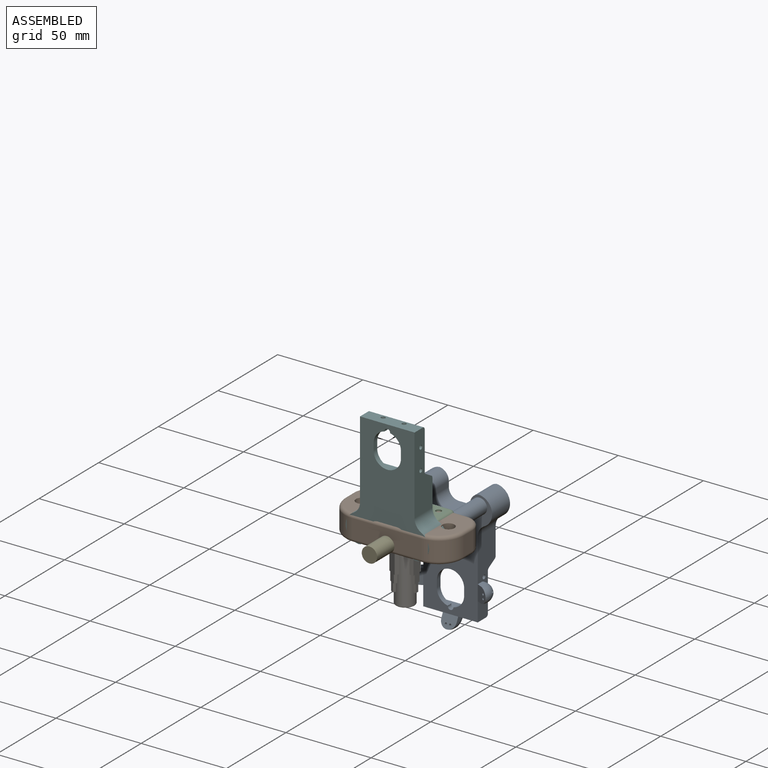
[diagram: assembled view]
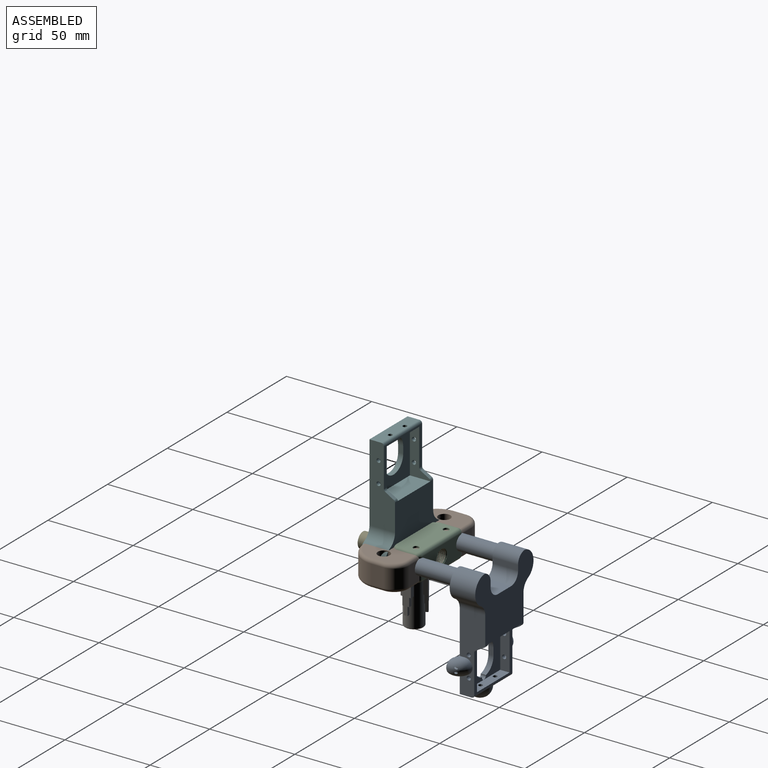
[diagram: assembled view, second angle]
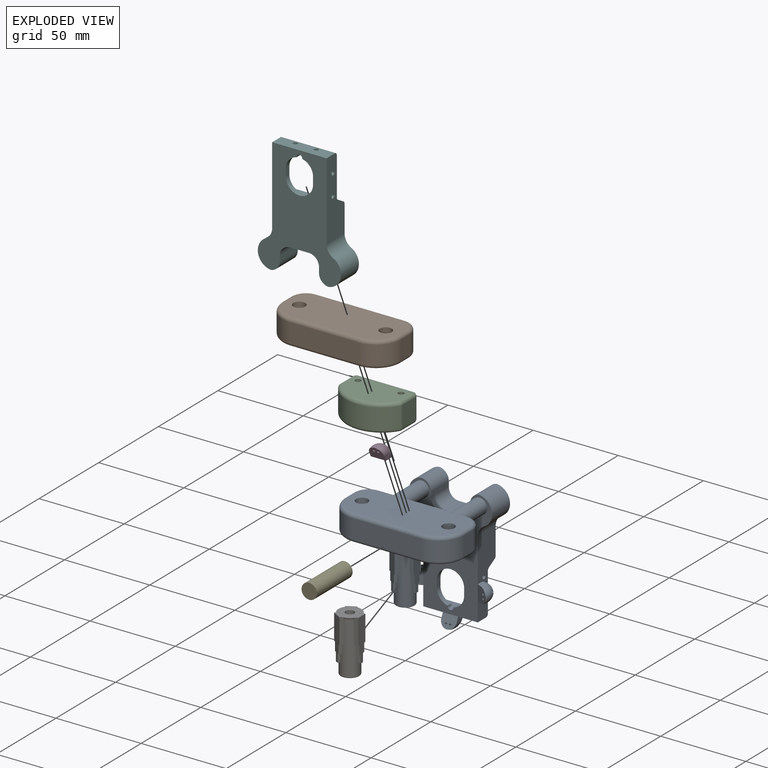
[diagram: exploded view]
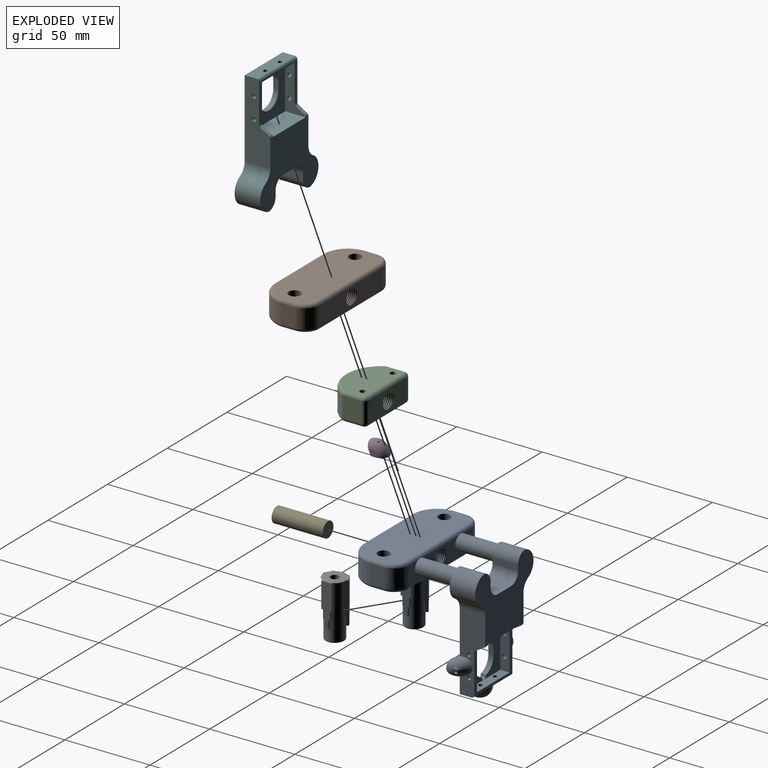
[diagram: exploded view, second angle]
FCSTD DOCUMENT  (FreeCAD 1.1R20260414 (Git shallow))
Label: Integrated-Inexpensive-Treadmill-Centered
License: Creative Commons Attribution-ShareAlike
LicenseURL: http://creativecommons.org/licenses/by-sa/4.0/
objects: Sketcher::SketchObject×24, App::Point×14, PartDesign::Pocket×12, PartDesign::CoordinateSystem×11, PartDesign::Pad×8, App::Link×8, PartDesign::Body×7, App::Part×7, PartDesign::Fillet×4, App::DocumentObjectGroup×3, PartDesign::Hole×2, PartDesign::Revolution×2, PartDesign::Plane×2, App::FeaturePython×1, Spreadsheet::Sheet×1
note: 152 computed .brp shape members not serialized (recipe doc carries the construction recipe); baked Part::Feature solids carry a one-line shape summary decoded from their .brp

FEATURE [Sketcher::SketchObject] Sketch001  label="metricBaseSketch"
  ArcFitTolerance = 0
  AttachmentSupport = -> [XY_Plane001]
  ExternalTypes = [0]
  FullyConstrained = false
  MakeInternals = false
  MapMode = 5
  _ExternalGeoVersion = 0
  sketch-geometry (16):
    g0: LineSegment StartX=-18.625 StartY=2.80977 StartZ=0 EndX=-18.625 EndY=13.5 EndZ=0
    g1: LineSegment StartX=-16.125 StartY=16 StartZ=0 EndX=16.125 EndY=16 EndZ=0
    g2: LineSegment StartX=18.625 StartY=13.5 StartZ=0 EndX=18.625 EndY=2.80977 EndZ=0
    g3: ArcOfCircle CenterX=1e-15 CenterY=12.1195 CenterZ=0 NormalX=0 NormalY=0 NormalZ=1 AngleXU=0 Radius=21.1195 StartAngle=3.66519 EndAngle=5.75959
    g4: ArcOfCircle CenterX=-16.125 CenterY=13.5 CenterZ=0 NormalX=0 NormalY=0 NormalZ=1 AngleXU=0 Radius=2.5 StartAngle=1.5708 EndAngle=3.14159
    g5: ArcOfCircle CenterX=16.125 CenterY=13.5 CenterZ=0 NormalX=0 NormalY=0 NormalZ=1 AngleXU=0 Radius=2.5 StartAngle=0 EndAngle=1.5708
    g6: ArcOfCircle CenterX=16.125 CenterY=2.80977 CenterZ=0 NormalX=0 NormalY=0 NormalZ=1 AngleXU=0 Radius=2.5 StartAngle=5.75959 EndAngle=6.28319
    g7: ArcOfCircle CenterX=-16.125 CenterY=2.80977 CenterZ=0 NormalX=0 NormalY=0 NormalZ=1 AngleXU=0 Radius=2.5 StartAngle=3.14159 EndAngle=3.66519
    g8: Circle CenterX=-12.625 CenterY=10 CenterZ=0 NormalX=0 NormalY=0 NormalZ=1 AngleXU=0 Radius=1.675
    g9: Circle CenterX=12.625 CenterY=10 CenterZ=0 NormalX=0 NormalY=0 NormalZ=1 AngleXU=0 Radius=1.675
    g10: GeomPoint [constr] X=-14.3 Y=10 Z=0
    g11: GeomPoint [constr] X=14.3 Y=10 Z=0
    g12: LineSegment [constr] StartX=-12.625 StartY=10 StartZ=0 EndX=12.625 EndY=10 EndZ=0
    g13: GeomPoint [constr] X=0 Y=-9 Z=0
    g14: GeomPoint [constr] X=0 Y=16 Z=0
    g15: GeomPoint [constr] X=0 Y=10 Z=0
  constraints (36):
    c: Vertical(g0)
    c: Vertical(g2)
    c: Tangent(g1,g4) = 1.5708
    c: Tangent(g0,g4) = 1.5708
    c: Tangent(g1,g5) = 1.5708
    c: Tangent(g2,g5) = 1.5708
    c: Tangent(g3,g6) = -1.5708
    c: Tangent(g2,g6) = 1.5708
    c: Tangent(g3,g7) = -1.5708
    c: Tangent(g0,g7) = 1.5708
    c: Diameter(g4) = 5
    c: Equal(g4,g7)
    c: Equal(g7,g5)
    c: Symmetric(g9,g8,g-2)
    c: Equal(g8,g9)
    c: Diameter(g9) = 3.35
    c: PointOnObject(g10,g8)
    c: PointOnObject(g11,g9)
    c: Coincident(g12,g8)
    c: Coincident(g12,g9)
    c: PointOnObject(g11,g12)
    c: PointOnObject(g10,g12)
    c: DistanceX(g10,g11) = 28.6
    c: DistanceX(g0,g8) = 6
    c: DistanceY(g8,g1) = 6
    c: Symmetric(g1,g1,g-2)
    c: PointOnObject(g13,g3)
    c: PointOnObject(g13,g-2)
    c: PointOnObject(g14,g1)
    c: PointOnObject(g14,g-2)
    c: Symmetric(g3,g3,g-2)
    c: Angle(g3) = 2.0944
    c: PointOnObject(g15,g12)
    c: PointOnObject(g15,g-2)
    c: DistanceY(g-1,g15) = 10
    c: DistanceY(g13,g-1) = 9
FEATURE [Sketcher::SketchObject] Sketch003
  ArcFitTolerance = 0
  AttachmentSupport = -> [XY_Plane001]
  ExternalTypes = [0]
  FullyConstrained = true
  MakeInternals = false
  MapMode = 5
  _ExternalGeoVersion = 0
  sketch-geometry (1):
    g0: Circle CenterX=0 CenterY=0 CenterZ=0 NormalX=0 NormalY=0 NormalZ=1 AngleXU=0 Radius=2.5
  constraints (2):
    c: Diameter(g0) = 5
    c: Coincident(g0,g-1)
FEATURE [Sketcher::SketchObject] Sketch005
  ArcFitTolerance = 0
  AttachmentSupport = -> [XY_Plane002]
  ExternalTypes = [0]
  FullyConstrained = true
  MakeInternals = false
  MapMode = 5
  _ExternalGeoVersion = 0
  sketch-geometry (1):
    g0: Circle CenterX=0 CenterY=0 CenterZ=0 NormalX=0 NormalY=0 NormalZ=1 AngleXU=0 Radius=2.5
  constraints (2):
    c: Diameter(g0) = 5
    c: Coincident(g0,g-1)
FEATURE [Sketcher::SketchObject] Sketch007  label="imperialBaseSketch"
  ArcFitTolerance = 0
  AttachmentSupport = -> [XY_Plane002]
  ExternalTypes = [0]
  FullyConstrained = false
  MakeInternals = false
  MapMode = 5
  _ExternalGeoVersion = 0
  sketch-geometry (15):
    g0: LineSegment StartX=-20 StartY=-15.5 StartZ=0 EndX=20 EndY=-15.5 EndZ=0
    g1: LineSegment StartX=35 StartY=-0.5 StartZ=0 EndX=35 EndY=6.5 EndZ=0
    g2: LineSegment StartX=26 StartY=15.5 StartZ=0 EndX=-26 EndY=15.5 EndZ=0
    g3: LineSegment StartX=-35 StartY=6.5 StartZ=0 EndX=-35 EndY=-0.5 EndZ=0
    g4: GeomPoint [constr] X=0 Y=0 Z=0
    g5: Circle CenterX=-25.4 CenterY=0 CenterZ=0 NormalX=0 NormalY=0 NormalZ=1 AngleXU=0 Radius=3.52
    g6: Circle CenterX=25.4 CenterY=0 CenterZ=0 NormalX=0 NormalY=0 NormalZ=1 AngleXU=0 Radius=3.52
    g7: ArcOfCircle CenterX=-20 CenterY=-0.5 CenterZ=0 NormalX=0 NormalY=0 NormalZ=1 AngleXU=0 Radius=15 StartAngle=3.14159 EndAngle=4.71239
    g8: GeomPoint [constr] X=-35 Y=-15.5 Z=0
    g9: ArcOfCircle CenterX=20 CenterY=-0.5 CenterZ=0 NormalX=0 NormalY=0 NormalZ=1 AngleXU=0 Radius=15 StartAngle=4.71239 EndAngle=6.28319
    g10: GeomPoint [constr] X=35 Y=-15.5 Z=0
    g11: ArcOfCircle CenterX=-26 CenterY=6.5 CenterZ=0 NormalX=0 NormalY=0 NormalZ=1 AngleXU=0 Radius=9 StartAngle=1.5708 EndAngle=3.14159
    g12: GeomPoint [constr] X=-35 Y=15.5 Z=0
    g13: ArcOfCircle CenterX=26 CenterY=6.5 CenterZ=0 NormalX=0 NormalY=0 NormalZ=1 AngleXU=0 Radius=9 StartAngle=-9e-16 EndAngle=1.5708
    g14: GeomPoint [constr] X=35 Y=15.5 Z=0
  constraints (32):
    c: Horizontal(g0)
    c: Horizontal(g2)
    c: Vertical(g1)
    c: Vertical(g3)
    c: Symmetric(g14,g8,g4)
    c: DistanceX(g12,g14) = 70
    c: DistanceY(g10,g14) = 31
    c: Coincident(g4,g-1)
    c: Diameter(g6) = 7.04  'clearance1420'
    c: Equal(g5,g6)
    c: DistanceX(g5,g6) = 50.8
    c: Distance(g6,g-2) = 25.4
    c: PointOnObject(g8,g3)
    c: PointOnObject(g8,g0)
    c: Tangent(g3,g7) = -1.5708
    c: Tangent(g0,g7) = -1.5708
    c: Radius(g7) = 15
    c: PointOnObject(g10,g1)
    c: PointOnObject(g10,g0)
    c: Tangent(g1,g9) = -1.5708
    c: Tangent(g0,g9) = -1.5708
    c: Radius(g9) = 15
    c: PointOnObject(g12,g3)
    c: PointOnObject(g12,g2)
    c: Tangent(g3,g11) = -1.5708
    c: Tangent(g2,g11) = -1.5708
    c: PointOnObject(g14,g2)
    c: PointOnObject(g14,g1)
    c: Tangent(g2,g13) = -1.5708
    c: Tangent(g1,g13) = -1.5708
    c: Radius(g11) = 9
    c: Radius(g13) = 9
FEATURE [PartDesign::Pad] Pad001  label="imperialBase"
  AlongSketchNormal = false
  Direction = (0,0,1)
  Length = 15
  Length2 = 10
  Profile = -> Sketch007
  ReferenceAxis = -> Sketch007 [N_Axis]
  SideType = 0
  Suppressed = false
  Type = 0
  Type2 = 0
FEATURE [Sketcher::SketchObject] Sketch006
  ArcFitTolerance = 0
  AttachmentSupport = -> [Pad001]
  ExternalTypes = [0]
  FullyConstrained = true
  MakeInternals = false
  MapMode = 5
  Placement = pos=(0,15.5,0) rot=(0,0.707107,0.707107;3.14159rad)
  _ExternalGeoVersion = 0
  sketch-geometry (1):
    g0: Circle CenterX=0 CenterY=7.5 CenterZ=0 NormalX=0 NormalY=0 NormalZ=1 AngleXU=0 Radius=4.7625
  constraints (3):
    c: PointOnObject(g0,g-2)
    c: DistanceY(g0,g-1) = -7.5
    c: Diameter(g0) = 9.525
FEATURE [PartDesign::Hole] Hole001  label="imperialThread"
  BaseFeature = -> Pad001
  BaseProfileType = 6
  CustomThreadClearance = 0
  Depth = 21
  DepthType = 0
  Diameter = 8.5
  DrillForDepth = true
  DrillPoint = 1
  DrillPointAngle = 118
  HoleCutCountersinkAngle = 90
  HoleCutCustomValues = false
  HoleCutDepth = 0
  HoleCutDiameter = 8.6
  HoleCutType = 0
  ModelThread = true
  Profile = -> Sketch006
  Suppressed = false
  Tapered = false
  TaperedAngle = 90
  ThreadClass = 0
  ThreadDepth = 9
  ThreadDepthType = 1
  ThreadDiameter = 9.525
  ThreadDirection = 0
  ThreadFit = 0
  ThreadSize = 12
  ThreadType = 4
  Threaded = true
  UseCustomThreadClearance = false
FEATURE [PartDesign::Pocket] Pocket001  label="imperialPocket"
  BaseFeature = -> Hole001
  Direction = (0,0,-1)
  Length = 6
  Length2 = 5
  Profile = -> Sketch005
  ReferenceAxis = -> Sketch005 [N_Axis]
  Reversed = true
  SideType = 0
  Suppressed = false
  Type = 0
  Type2 = 0
FEATURE [PartDesign::CoordinateSystem] LCS_Origin
  AttacherType = Attacher::AttachEngine3D
  AttachmentSupport = -> [X_Axis003]
  MapMode = 2
FEATURE [App::DocumentObjectGroup] Constraints
FEATURE [App::FeaturePython] Variables  # WARN: FeaturePython — macro-defined, semantics opaque (R4)
  Type = App::PropertyContainer
FEATURE [App::DocumentObjectGroup] Configurations
FEATURE [Spreadsheet::Sheet] Spreadsheet  label="SphereHolderParameters"
  cells = A1='Overall tube height; B1(tubeheight)==32 mm; A2='Distance of the first step; B2(first_step)==5 mm; A3='Distance of the second step; B3(second_step)==10 mm
FEATURE [PartDesign::Pad] Pad  label="metricBase"
  Direction = (0,0,1)
  Length = 16
  Length2 = 10
  Profile = -> Sketch001
  ReferenceAxis = -> Sketch001 [N_Axis]
  SideType = 0
  Suppressed = false
  Type = 0
  Type2 = 0
FEATURE [Sketcher::SketchObject] Sketch002
  ArcFitTolerance = 0
  AttachmentSupport = -> [Pad]
  ExternalTypes = [0]
  FullyConstrained = true
  MakeInternals = false
  MapMode = 5
  Placement = pos=(0,16,0) rot=(0,0.707107,0.707107;3.14159rad)
  _ExternalGeoVersion = 0
  sketch-geometry (1):
    g0: Circle CenterX=0 CenterY=7.5 CenterZ=0 NormalX=0 NormalY=0 NormalZ=1 AngleXU=0 Radius=4.7625
  constraints (3):
    c: PointOnObject(g0,g-2)
    c: DistanceY(g0,g-1) = -7.5
    c: Diameter(g0) = 9.525
FEATURE [PartDesign::Hole] Hole  label="metricThread"
  BaseFeature = -> Pad
  BaseProfileType = 6
  CustomThreadClearance = 0
  Depth = 19
  DepthType = 0
  Diameter = 8.5
  DrillForDepth = false
  DrillPoint = 0
  DrillPointAngle = 118
  HoleCutCountersinkAngle = 90
  HoleCutCustomValues = false
  HoleCutDepth = 0
  HoleCutDiameter = 8.6
  HoleCutType = 0
  ModelThread = true
  Profile = -> Sketch002
  Suppressed = false
  Tapered = false
  TaperedAngle = 90
  ThreadClass = 0
  ThreadDepth = 9
  ThreadDepthType = 1
  ThreadDiameter = 9.525
  ThreadDirection = 0
  ThreadFit = 0
  ThreadSize = 12
  ThreadType = 4
  Threaded = true
  UseCustomThreadClearance = false
FEATURE [PartDesign::Pocket] Pocket  label="metricAirOutlet"
  BaseFeature = -> Hole
  Direction = (0,0,-1)
  Length = 10
  Length2 = 5
  Profile = -> Sketch003
  ReferenceAxis = -> Sketch003 [N_Axis]
  Reversed = true
  SideType = 0
  Suppressed = false
  Type = 0
  Type2 = 0
FEATURE [PartDesign::Fillet] Fillet  label="BodyFillet"
  Base = -> Pocket [Edge12,Edge9,Edge3,Edge6,Edge11,Edge15,Edge13,Edge14,Edge19,Edge10,Edge4,Edge7,Edge23,Edge22,Edge21,Edge20]
  BaseFeature = -> Pocket
  Radius = 2
  SupportTransform = false
  Suppressed = false
  UseAllEdges = false
FEATURE [PartDesign::Fillet] Fillet005  label="AirOutletFillet"
  Base = -> Fillet [Edge62]
  BaseFeature = -> Fillet
  Radius = 2
  SupportTransform = false
  Suppressed = false
  UseAllEdges = false
FEATURE [PartDesign::Body] Body001  label="metricBaseBody"
  AllowCompound = true
  Group = -> [Sketch001,Pad,Sketch002,Hole,Sketch003,Pocket,Fillet,Fillet005]
  Origin = -> Origin001
  Tip = -> Fillet005
FEATURE [PartDesign::CoordinateSystem] LCS_metric
  AttacherType = Attacher::AttachEngine3D
  AttachmentSupport = -> [Fillet005]
  MapMode = 45
  Placement = pos=(1.19e-14,0,0) rot=(0,0,1;0rad)
FEATURE [App::Part] Part001  label="metricBasePart"
  Group = -> [Body001,LCS_metric]
  Origin = -> Origin006
FEATURE [Sketcher::SketchObject] Sketch  label="Revolution tube cross section"
  ArcFitTolerance = 0
  AttachmentOffset = pos=(0,0,0) rot=(1,0,0;3.14159rad)
  AttachmentSupport = -> [XZ_Plane]
  ExternalTypes = [0]
  FullyConstrained = true
  MakeInternals = false
  MapMode = 5
  Placement = pos=(0,0,0) rot=(1,0,0;4.71239rad)
  _ExternalGeoVersion = 0
  expr: Constraints[12] = <<SphereHolderParameters>>.tubeheight
  sketch-geometry (10):
    g0: LineSegment StartX=-0.9 StartY=27.9713 StartZ=0 EndX=-0.9 EndY=28.9713 EndZ=0
    g1: LineSegment StartX=-2.5 StartY=8.9584e-12 StartZ=0 EndX=-6.73953 EndY=8.9584e-12 EndZ=0
    g2: LineSegment StartX=-5.5 StartY=1.47721 StartZ=0 EndX=-5.5 EndY=32 EndZ=0
    g3: ArcOfCircle CenterX=0 CenterY=33.3803 CenterZ=0 NormalX=0 NormalY=0 NormalZ=1 AngleXU=0 Radius=4.5 StartAngle=3.41593 EndAngle=4.51103
    g4: ArcOfCircle [constr] CenterX=0 CenterY=33.3803 CenterZ=0 NormalX=0 NormalY=0 NormalZ=1 AngleXU=0 Radius=4.5 StartAngle=3.41593 EndAngle=4.71239
    g5: ArcOfCircle CenterX=-4.90473 CenterY=32 CenterZ=0 NormalX=0 NormalY=0 NormalZ=1 AngleXU=0 Radius=0.595267 StartAngle=0.274335 EndAngle=3.14159
    g6: GeomPoint [constr] X=-5.5 Y=0 Z=0
    g7: ArcOfCircle CenterX=-7 CenterY=1.47721 CenterZ=0 NormalX=0 NormalY=0 NormalZ=1 AngleXU=0 Radius=1.5 StartAngle=4.88692 EndAngle=6.28319
    g8: LineSegment StartX=-0.9 StartY=27.9713 StartZ=0 EndX=-2.5 EndY=23.5753 EndZ=0
    g9: LineSegment StartX=-2.5 StartY=23.5753 StartZ=0 EndX=-2.5 EndY=8.9599e-12 EndZ=0
  constraints (29):
    c: Vertical(g0)
    c: PointOnObject(g6,g-1)
    c: Vertical(g2)
    c: PointOnObject(g3,g-2)
    c: Coincident(g3,g0)
    c: DistanceX(g6,g-1) = 5.5
    c: Coincident(g4,g3)
    c: PointOnObject(g4,g-2)
    c: Coincident(g3,g4)
    c: Tangent(g5,g3) = 1.5708
    c: Tangent(g5,g2) = 1.5708
    c: DistanceY(g0,g3) = 3.19
    c: DistanceY(g-1,g2) = 32
    c: PointOnObject(g6,g2)
    c: PointOnObject(g6,g1)
    c: Coincident(g7,g1)
    c: Tangent(g7,g2) = -1.5708
    c: Angle(g7) = 1.39626
    c: Diameter(g7) = 3
    c: Diameter(g3) = 9
    c: Coincident(g9,g8)
    c: Vertical(g9)
    c: Coincident(g0,g8)
    c: Coincident(g1,g9)
    c: DistanceX(g-2,g0) = -0.9
    c: Angle(g8) = 4.36332
    c: DistanceY(g0,g0) = 1
    c: Horizontal(g1)
    c: DistanceX(g1,g-1) = 2.5
FEATURE [PartDesign::Revolution] Revolution  label="Tube"
  Angle = 360
  Angle2 = 0
  Axis = (0,-2e-16,-1)
  Base = (0,0,0)
  FuseOrder = 0
  Placement = pos=(0,0,0) rot=(1,0,0;1.5708rad)
  Profile = -> Sketch
  ReferenceAxis = -> Sketch [V_Axis]
  Suppressed = false
  Type = 0
FEATURE [PartDesign::Body] Body  label="SphereTube"
  AllowCompound = true
  Group = -> [Sketch,Revolution]
  Origin = -> Origin
  Placement = pos=(0,0,0) rot=(0,0,1;4.18879rad)
  Tip = -> Revolution
FEATURE [PartDesign::CoordinateSystem] LCS_Tube
  AttacherType = Attacher::AttachEngine3D
  AttachmentSupport = -> [Revolution]
  MapMode = 45
  Placement = pos=(-1.19e-14,0,-8.9592e-12) rot=(0,0,1;0rad)
FEATURE [App::Link] imperialBasePart  label="imperialBasePart001"
  AssemblyType = Part::Link
  AttachedBy = #LCS_imperia
  AttachedTo = Parent Assembly#LCS_Origin
  LinkPlacement = pos=(-1.19e-14,0,0) rot=(0,0,1;0rad)
  LinkedObject = -> Part
  Placement = pos=(-1.19e-14,0,0) rot=(0,0,1;0rad)
  SolverId = Asm4EE
  expr: Placement = LCS_Origin.Placement * AttachmentOffset * LCS_imperia.Placement ^ -1
FEATURE [App::Link] TubePart  label="TubePart001"
  AssemblyType = Part::Link
  AttachedBy = #LCS_Tube
  AttachedTo = Parent Assembly#LCS_Origin
  LinkPlacement = pos=(1.19e-14,0,8.9592e-12) rot=(0,0,1;0rad)
  LinkedObject = -> Tube
  Placement = pos=(1.19e-14,0,8.9592e-12) rot=(0,0,1;0rad)
  SolverId = Asm4EE
  expr: Placement = LCS_Origin.Placement * AttachmentOffset * LCS_Tube.Placement ^ -1
FEATURE [PartDesign::Plane] DatumPlane  label="Rotate120"
  AttachmentOffset = pos=(0,0,0) rot=(0,1,0;2.0944rad)
  AttachmentSupport = -> [YZ_Plane007]
  Length = 79.989
  MapMode = 5
  Placement = pos=(0,0,0) rot=(-0.186157,0.694747,0.694747;3.50969rad)
  ResizeMode = 0
  Width = 61.6877
FEATURE [PartDesign::Plane] DatumPlane001  label="Rotate240"
  AttachmentOffset = pos=(0,0,0) rot=(0,1,0;4.18879rad)
  AttachmentSupport = -> [YZ_Plane007]
  Length = 79.989
  MapMode = 5
  Placement = pos=(0,0,0) rot=(-0.935113,0.250563,0.250563;4.64535rad)
  ResizeMode = 0
  Width = 61.6877
FEATURE [Sketcher::SketchObject] Sketch008
  ArcFitTolerance = 0
  AttachmentSupport = -> [DatumPlane]
  ExternalTypes = [0]
  FullyConstrained = true
  MakeInternals = false
  MapMode = 5
  Placement = pos=(0,0,0) rot=(-0.186157,0.694747,0.694747;3.50969rad)
  _ExternalGeoVersion = 0
  expr: Constraints[16] = Spreadsheet.tubeheight - 7 mm
  expr: Constraints[17] = <<SphereHolderParameters>>.first_step
  expr: Constraints[32] = <<SphereHolderParameters>>.second_step
  sketch-geometry (12):
    g0: LineSegment StartX=-3 StartY=0 StartZ=0 EndX=3 EndY=-2e-16 EndZ=0
    g1: LineSegment StartX=2 StartY=-15 StartZ=0 EndX=2 EndY=-20 EndZ=0
    g2: LineSegment StartX=2 StartY=-20 StartZ=0 EndX=1 EndY=-20 EndZ=0
    g3: LineSegment StartX=1 StartY=-20 StartZ=0 EndX=1 EndY=-25 EndZ=0
    g4: LineSegment StartX=1 StartY=-25 StartZ=0 EndX=-1 EndY=-25 EndZ=0
    g5: LineSegment StartX=-1 StartY=-25 StartZ=0 EndX=-1 EndY=-20 EndZ=0
    g6: LineSegment StartX=-1 StartY=-20 StartZ=0 EndX=-2 EndY=-20 EndZ=0
    g7: LineSegment StartX=-2 StartY=-20 StartZ=0 EndX=-2 EndY=-15 EndZ=0
    g8: LineSegment StartX=-2 StartY=-15 StartZ=0 EndX=-3 EndY=-15 EndZ=0
    g9: LineSegment StartX=-3 StartY=-15 StartZ=0 EndX=-3 EndY=0 EndZ=0
    g10: LineSegment StartX=2 StartY=-15 StartZ=0 EndX=3 EndY=-15 EndZ=0
    g11: LineSegment StartX=3 StartY=-15 StartZ=0 EndX=3 EndY=0 EndZ=0
  constraints (33):
    c: PointOnObject(g0,g-1)
    c: Vertical(g1)
    c: Coincident(g1,g2)
    c: Horizontal(g2)
    c: Coincident(g2,g3)
    c: Vertical(g3)
    c: Coincident(g3,g4)
    c: Horizontal(g4)
    c: Coincident(g4,g5)
    c: Vertical(g5)
    c: Coincident(g5,g6)
    c: Horizontal(g6)
    c: Coincident(g6,g7)
    c: Vertical(g7)
    c: Symmetric(g0,g0,g-2)
    c: Symmetric(g5,g2,g-2)
    c: DistanceY(g3,g0) = 25
    c: DistanceY(g3,g2) = 5
    c: DistanceX(g4,g3) = 2
    c: DistanceX(g6,g1) = 4
    c: Horizontal(g8)
    c: Coincident(g9,g8)
    c: Vertical(g9)
    c: Coincident(g7,g8)
    c: Coincident(g0,g9)
    c: Horizontal(g10)
    c: Coincident(g11,g10)
    c: Vertical(g11)
    c: Coincident(g1,g10)
    c: Symmetric(g1,g7,g-2)
    c: Coincident(g0,g11)
    c: DistanceX(g8,g10) = 6
    c: DistanceY(g3,g10) = 10
FEATURE [PartDesign::Pad] Pad002
  Direction = (-0.5,0.866025,-1e-16)
  Length = 7
  Length2 = 10
  Placement = pos=(0,0,0) rot=(-0.186157,0.694747,0.694747;3.50969rad)
  Profile = -> Sketch008
  ReferenceAxis = -> Sketch008 [N_Axis]
  SideType = 0
  Suppressed = false
  Type = 0
  Type2 = 0
FEATURE [Sketcher::SketchObject] Sketch009
  ArcFitTolerance = 0
  AttachmentSupport = -> [DatumPlane001]
  ExternalTypes = [0]
  FullyConstrained = true
  MakeInternals = false
  MapMode = 5
  Placement = pos=(0,0,0) rot=(0.935113,-0.250563,-0.250563;1.63783rad)
  _ExternalGeoVersion = 0
  expr: Constraints[27] = <<SphereHolderParameters>>.tubeheight - 7 mm
  expr: Constraints[28] = <<SphereHolderParameters>>.first_step
  expr: Constraints[29] = <<SphereHolderParameters>>.second_step
  sketch-geometry (12):
    g0: LineSegment StartX=-3 StartY=0 StartZ=0 EndX=3 EndY=2e-16 EndZ=0
    g1: LineSegment StartX=3 StartY=2e-16 StartZ=0 EndX=3 EndY=-15 EndZ=0
    g2: LineSegment StartX=3 StartY=-15 StartZ=0 EndX=2 EndY=-15 EndZ=0
    g3: LineSegment StartX=2 StartY=-15 StartZ=0 EndX=2 EndY=-20 EndZ=0
    g4: LineSegment StartX=2 StartY=-20 StartZ=0 EndX=1 EndY=-20 EndZ=0
    g5: LineSegment StartX=1 StartY=-20 StartZ=0 EndX=1 EndY=-25 EndZ=0
    g6: LineSegment StartX=1 StartY=-25 StartZ=0 EndX=-1 EndY=-25 EndZ=0
    g7: LineSegment StartX=-1 StartY=-25 StartZ=0 EndX=-1 EndY=-20 EndZ=0
    g8: LineSegment StartX=-1 StartY=-20 StartZ=0 EndX=-2 EndY=-20 EndZ=0
    g9: LineSegment StartX=-2 StartY=-20 StartZ=0 EndX=-2 EndY=-15 EndZ=0
    g10: LineSegment StartX=-2 StartY=-15 StartZ=0 EndX=-3 EndY=-15 EndZ=0
    g11: LineSegment StartX=-3 StartY=-15 StartZ=0 EndX=-3 EndY=0 EndZ=0
  constraints (33):
    c: PointOnObject(g0,g-1)
    c: Coincident(g0,g1)
    c: Vertical(g1)
    c: Coincident(g1,g2)
    c: Horizontal(g2)
    c: Coincident(g2,g3)
    c: Vertical(g3)
    c: Coincident(g3,g4)
    c: Horizontal(g4)
    c: Coincident(g4,g5)
    c: Vertical(g5)
    c: Coincident(g5,g6)
    c: Horizontal(g6)
    c: Coincident(g6,g7)
    c: Vertical(g7)
    c: Coincident(g7,g8)
    c: Horizontal(g8)
    c: Coincident(g8,g9)
    c: Vertical(g9)
    c: Coincident(g9,g10)
    c: Horizontal(g10)
    c: Coincident(g10,g11)
    c: Coincident(g11,g0)
    c: Vertical(g11)
    c: Symmetric(g0,g0,g-2)
    c: Symmetric(g9,g2,g-2)
    c: Symmetric(g7,g4,g-2)
    c: DistanceY(g5,g0) = 25
    c: DistanceY(g6,g7) = 5
    c: DistanceY(g6,g9) = 10
    c: DistanceX(g0,g0) = 6
    c: DistanceX(g8,g3) = 4
    c: DistanceX(g6,g5) = 2
FEATURE [PartDesign::Pad] Pad003
  BaseFeature = -> Pad002
  Direction = (-0.5,-0.866025,0)
  Length = 7
  Length2 = 10
  Placement = pos=(0,0,0) rot=(-0.186157,0.694747,0.694747;3.50969rad)
  Profile = -> Sketch009
  ReferenceAxis = -> Sketch009 [N_Axis]
  SideType = 0
  Suppressed = false
  Type = 0
  Type2 = 0
FEATURE [Sketcher::SketchObject] Sketch010
  ArcFitTolerance = 0
  AttachmentSupport = -> [YZ_Plane007]
  ExternalTypes = [0]
  FullyConstrained = true
  MakeInternals = false
  MapMode = 5
  Placement = pos=(0,0,0) rot=(0.57735,0.57735,0.57735;2.0944rad)
  _ExternalGeoVersion = 0
  expr: Constraints[29] = <<SphereHolderParameters>>.tubeheight - 7 mm
  expr: Constraints[30] = <<SphereHolderParameters>>.first_step
  expr: Constraints[31] = <<SphereHolderParameters>>.second_step
  sketch-geometry (12):
    g0: LineSegment StartX=-3 StartY=0 StartZ=0 EndX=3 EndY=0 EndZ=0
    g1: LineSegment StartX=3 StartY=0 StartZ=0 EndX=3 EndY=-15 EndZ=0
    g2: LineSegment StartX=3 StartY=-15 StartZ=0 EndX=2 EndY=-15 EndZ=0
    g3: LineSegment StartX=2 StartY=-15 StartZ=0 EndX=2 EndY=-20 EndZ=0
    g4: LineSegment StartX=2 StartY=-20 StartZ=0 EndX=1 EndY=-20 EndZ=0
    g5: LineSegment StartX=1 StartY=-20 StartZ=0 EndX=1 EndY=-25 EndZ=0
    g6: LineSegment StartX=1 StartY=-25 StartZ=0 EndX=-1 EndY=-25 EndZ=0
    g7: LineSegment StartX=-1 StartY=-25 StartZ=0 EndX=-1 EndY=-20 EndZ=0
    g8: LineSegment StartX=-1 StartY=-20 StartZ=0 EndX=-2 EndY=-20 EndZ=0
    g9: LineSegment StartX=-2 StartY=-20 StartZ=0 EndX=-2 EndY=-15 EndZ=0
    g10: LineSegment StartX=-2 StartY=-15 StartZ=0 EndX=-3 EndY=-15 EndZ=0
    g11: LineSegment StartX=-3 StartY=-15 StartZ=0 EndX=-3 EndY=0 EndZ=0
  constraints (32):
    c: PointOnObject(g0,g-1)
    c: PointOnObject(g0,g-1)
    c: Coincident(g0,g1)
    c: Vertical(g1)
    c: Coincident(g1,g2)
    c: Horizontal(g2)
    c: Coincident(g2,g3)
    c: Vertical(g3)
    c: Coincident(g3,g4)
    c: Horizontal(g4)
    c: Coincident(g4,g5)
    c: Vertical(g5)
    c: Coincident(g5,g6)
    c: Coincident(g6,g7)
    c: Coincident(g7,g8)
    c: Horizontal(g8)
    c: Coincident(g8,g9)
    c: Coincident(g9,g10)
    c: Coincident(g10,g11)
    c: Coincident(g11,g0)
    c: Vertical(g11)
    c: Vertical(g9)
    c: Symmetric(g6,g5,g-2)
    c: Symmetric(g4,g7,g-2)
    c: Symmetric(g2,g9,g-2)
    c: Symmetric(g1,g10,g-2)
    c: DistanceX(g6,g5) = 2
    c: DistanceX(g8,g3) = 4
    c: DistanceX(g10,g1) = 6
    c: DistanceY(g5,g0) = 25
    c: DistanceY(g5,g4) = 5
    c: DistanceY(g5,g2) = 10
FEATURE [PartDesign::Pad] Pad004
  BaseFeature = -> Pad003
  Direction = (1,0,0)
  Length = 7
  Length2 = 10
  Placement = pos=(0,0,0) rot=(-0.186157,0.694747,0.694747;3.50969rad)
  Profile = -> Sketch010
  ReferenceAxis = -> Sketch010 [N_Axis]
  SideType = 0
  Suppressed = false
  Type = 0
  Type2 = 0
FEATURE [Sketcher::SketchObject] Sketch011
  ArcFitTolerance = 0
  AttachmentSupport = -> [XY_Plane007]
  ExternalTypes = [0]
  FullyConstrained = true
  MakeInternals = false
  MapMode = 5
  _ExternalGeoVersion = 0
  sketch-geometry (1):
    g0: Circle CenterX=0 CenterY=0 CenterZ=0 NormalX=0 NormalY=0 NormalZ=1 AngleXU=0 Radius=5.25
  constraints (2):
    c: Coincident(g0,g-1)
    c: Diameter(g0) = 10.5
FEATURE [PartDesign::Pad] Pad005
  BaseFeature = -> Pad004
  Direction = (0,0,1)
  Length = 3
  Length2 = 10
  Placement = pos=(0,0,0) rot=(-0.186157,0.694747,0.694747;3.50969rad)
  Profile = -> Sketch011
  ReferenceAxis = -> Sketch011 [N_Axis]
  Reversed = true
  SideType = 0
  Suppressed = false
  Type = 0
  Type2 = 0
FEATURE [Sketcher::SketchObject] Sketch012
  ArcFitTolerance = 0
  AttachmentSupport = -> [XY_Plane007]
  ExternalTypes = [0]
  FullyConstrained = true
  MakeInternals = false
  MapMode = 5
  _ExternalGeoVersion = 0
  sketch-geometry (1):
    g0: Circle CenterX=0 CenterY=0 CenterZ=0 NormalX=0 NormalY=0 NormalZ=1 AngleXU=0 Radius=5.125
  constraints (2):
    c: Coincident(g0,g-1)
    c: Diameter(g0) = 10.25
FEATURE [PartDesign::Pocket] Pocket002
  BaseFeature = -> Pad005
  Direction = (0,0,-1)
  Length = 5
  Length2 = 5
  Placement = pos=(0,0,0) rot=(-0.186157,0.694747,0.694747;3.50969rad)
  Profile = -> Sketch012
  ReferenceAxis = -> Sketch012 [N_Axis]
  SideType = 0
  Suppressed = false
  Type = 1
  Type2 = 0
FEATURE [PartDesign::Body] Body003  label="Steppers"
  AllowCompound = true
  Group = -> [DatumPlane,DatumPlane001,Sketch008,Pad002,Sketch009,Pad003,Sketch010,Pad004,Sketch011,Pad005,Sketch012,Pocket002]
  Origin = -> Origin007
  Tip = -> Pocket002
FEATURE [App::Part] Tube  label="TubePart"
  Group = -> [Body,LCS_Tube,Body003]
  Origin = -> Origin004
FEATURE [Sketcher::SketchObject] Sketch017
  ArcFitTolerance = 0
  AttachmentSupport = -> [XY_Plane011]
  ExternalTypes = [0]
  FullyConstrained = true
  MakeInternals = false
  MapMode = 5
  _ExternalGeoVersion = 0
  sketch-geometry (4):
    g0: LineSegment StartX=-4.5 StartY=3 StartZ=0 EndX=-4.5 EndY=0 EndZ=0
    g1: LineSegment StartX=-4.5 StartY=0 StartZ=0 EndX=4.5 EndY=0 EndZ=0
    g2: LineSegment StartX=4.5 StartY=0 StartZ=0 EndX=4.5 EndY=3 EndZ=0
    g3: ArcOfCircle CenterX=-3e-16 CenterY=3 CenterZ=0 NormalX=0 NormalY=0 NormalZ=1 AngleXU=0 Radius=4.5 StartAngle=0 EndAngle=3.14159
  constraints (12):
    c: PointOnObject(g0,g-1)
    c: Vertical(g0)
    c: Coincident(g0,g1)
    c: PointOnObject(g1,g-1)
    c: Coincident(g1,g2)
    c: Coincident(g3,g0)
    c: Coincident(g3,g2)
    c: Vertical(g2)
    c: Diameter(g3) = 9
    c: DistanceY(g0,g0) = 3
    c: Symmetric(g2,g0,g-2)
    c: Angle(g3) = 3.14159
FEATURE [PartDesign::Revolution] Revolution001  label="LightBody"
  Angle = 115
  Angle2 = 0
  Axis = (1,0,0)
  Base = (0,0,0)
  FuseOrder = 0
  Profile = -> Sketch017
  ReferenceAxis = -> X_Axis011
  Suppressed = false
  Type = 0
FEATURE [Sketcher::SketchObject] Sketch018
  ArcFitTolerance = 0
  AttachmentSupport = -> [Revolution001]
  ExternalTypes = [0]
  FullyConstrained = true
  MakeInternals = false
  MapMode = 5
  Placement = pos=(0,1e-16,0) rot=(1,0,0;2.00713rad)
  _ExternalGeoVersion = 0
  sketch-geometry (2):
    g0: Circle CenterX=-1.27 CenterY=5 CenterZ=0 NormalX=0 NormalY=0 NormalZ=1 AngleXU=0 Radius=0.635
    g1: Circle CenterX=1.27 CenterY=5 CenterZ=0 NormalX=0 NormalY=0 NormalZ=1 AngleXU=0 Radius=0.635
  constraints (5):
    c: Symmetric(g1,g0,g-2)
    c: DistanceX(g0,g1) = 2.54
    c: Diameter(g1) = 1.27
    c: Equal(g0,g1)
    c: DistanceY(g-1,g1) = 5
FEATURE [PartDesign::Pocket] Pocket005  label="LED_Mounts"
  BaseFeature = -> Revolution001
  Direction = (0,0.906308,0.422618)
  Length = 5
  Length2 = 5
  Profile = -> Sketch018
  ReferenceAxis = -> Sketch018 [N_Axis]
  SideType = 0
  Suppressed = false
  Type = 1
  Type2 = 0
FEATURE [PartDesign::Body] Body005  label="Light"
  AllowCompound = true
  Group = -> [Sketch017,Revolution001,Sketch018,Pocket005]
  Origin = -> Origin011
  Tip = -> Pocket005
FEATURE [Sketcher::SketchObject] Sketch019
  ArcFitTolerance = 0
  AttachmentSupport = -> [XZ_Plane014]
  ExternalTypes = [0]
  FullyConstrained = true
  MakeInternals = false
  MapMode = 5
  Placement = pos=(0,0,0) rot=(1,0,0;1.5708rad)
  _ExternalGeoVersion = 0
  sketch-geometry (1):
    g0: Circle CenterX=0 CenterY=4.5 CenterZ=0 NormalX=0 NormalY=0 NormalZ=1 AngleXU=0 Radius=4.5
  constraints (3):
    c: PointOnObject(g0,g-2)
    c: Diameter(g0) = 9
    c: PointOnObject(g-1,g0)
FEATURE [PartDesign::Pad] Pad007  label="Rod"
  Direction = (0,-1,2e-16)
  Length = 30
  Length2 = 10
  Placement = pos=(0,0,0) rot=(1,0,0;1.5708rad)
  Profile = -> Sketch019
  ReferenceAxis = -> Sketch019 [N_Axis]
  SideType = 0
  Suppressed = false
  Type = 0
  Type2 = 0
FEATURE [PartDesign::Body] Body006  label="ConnectorRod"
  AllowCompound = true
  Group = -> [Sketch019,Pad007]
  Origin = -> Origin013
  Tip = -> Pad007
FEATURE [PartDesign::CoordinateSystem] LCS_LightBase
  AttacherType = Attacher::AttachEngine3D
  AttachmentSupport = -> [Pocket005]
  MapMode = 45
  Placement = pos=(0,0,0) rot=(0.57735,0.57735,0.57735;2.0944rad)
FEATURE [App::Part] Part003  label="LightFixture"
  Group = -> [Body005,LCS_LightBase]
  Origin = -> Origin010
FEATURE [PartDesign::CoordinateSystem] LCS_ConnectorBase
  AttacherType = Attacher::AttachEngine3D
  AttachmentSupport = -> [Pad007]
  MapMode = 45
  Placement = pos=(2.15e-14,-30,4.5) rot=(-1,0,0;1.5708rad)
FEATURE [App::Part] Part004  label="Connector"
  Group = -> [Body006,LCS_ConnectorBase]
  Origin = -> Origin012
FEATURE [Sketcher::SketchObject] Sketch020
  ArcFitTolerance = 0
  AttachmentSupport = -> [XZ_Plane016]
  ExternalTypes = [0]
  FullyConstrained = true
  MakeInternals = false
  MapMode = 5
  Placement = pos=(0,0,0) rot=(1,0,0;1.5708rad)
  _ExternalGeoVersion = 0
  expr: Constraints[20] = <<SphereHolderParameters>>.tubeheight + 20 mm
  sketch-geometry (25):
    g0: LineSegment StartX=-47.6 StartY=1.5 StartZ=0 EndX=-47.6 EndY=13.5 EndZ=0
    g1: LineSegment StartX=-46.1 StartY=15 StartZ=0 EndX=-23.5 EndY=15 EndZ=0
    g2: LineSegment StartX=-16 StartY=22.5 StartZ=0 EndX=-16 EndY=68 EndZ=0
    g3: LineSegment StartX=-16 StartY=68 StartZ=0 EndX=16 EndY=68 EndZ=0
    g4: LineSegment StartX=16 StartY=68 StartZ=0 EndX=16 EndY=22.5 EndZ=0
    g5: LineSegment StartX=23.5 StartY=15 StartZ=0 EndX=46.1 EndY=15 EndZ=0
    g6: LineSegment StartX=47.6 StartY=13.5 StartZ=0 EndX=47.6 EndY=1.5 EndZ=0
    g7: LineSegment StartX=46.1 StartY=0 StartZ=0 EndX=17.5 EndY=0 EndZ=0
    g8: LineSegment StartX=-11.5 StartY=6 StartZ=0 EndX=-11.5 EndY=9 EndZ=0
    g9: LineSegment StartX=-5.5 StartY=15 StartZ=0 EndX=5.5 EndY=15 EndZ=0
    g10: LineSegment StartX=11.5 StartY=9 StartZ=0 EndX=11.5 EndY=6 EndZ=0
    g11: LineSegment StartX=-17.5 StartY=0 StartZ=0 EndX=-46.1 EndY=2e-16 EndZ=0
    g12: LineSegment [constr] StartX=-16 StartY=68 StartZ=0 EndX=16 EndY=36 EndZ=0
    g13: LineSegment [constr] StartX=16 StartY=68 StartZ=0 EndX=-16 EndY=36 EndZ=0
    g14: GeomPoint [constr] X=7e-15 Y=52 Z=0
    g15: ArcOfCircle CenterX=-17.5 CenterY=6 CenterZ=0 NormalX=0 NormalY=0 NormalZ=1 AngleXU=0 Radius=6 StartAngle=4.71239 EndAngle=6.28319
    g16: ArcOfCircle CenterX=-5.5 CenterY=9 CenterZ=0 NormalX=0 NormalY=0 NormalZ=1 AngleXU=0 Radius=6 StartAngle=1.5708 EndAngle=3.14159
    g17: ArcOfCircle CenterX=5.5 CenterY=9 CenterZ=0 NormalX=0 NormalY=0 NormalZ=1 AngleXU=0 Radius=6 StartAngle=0 EndAngle=1.5708
    g18: ArcOfCircle CenterX=17.5 CenterY=6 CenterZ=0 NormalX=0 NormalY=0 NormalZ=1 AngleXU=0 Radius=6 StartAngle=3.14159 EndAngle=4.71239
    g19: ArcOfCircle CenterX=23.5 CenterY=22.5 CenterZ=0 NormalX=0 NormalY=0 NormalZ=1 AngleXU=0 Radius=7.5 StartAngle=3.14159 EndAngle=4.71239
    g20: ArcOfCircle CenterX=-23.5 CenterY=22.5 CenterZ=0 NormalX=0 NormalY=0 NormalZ=1 AngleXU=0 Radius=7.5 StartAngle=4.71239 EndAngle=6.28319
    g21: ArcOfCircle CenterX=46.1 CenterY=13.5 CenterZ=0 NormalX=0 NormalY=0 NormalZ=1 AngleXU=0 Radius=1.5 StartAngle=3e-16 EndAngle=1.5708
    g22: ArcOfCircle CenterX=-46.1 CenterY=13.5 CenterZ=0 NormalX=0 NormalY=0 NormalZ=1 AngleXU=0 Radius=1.5 StartAngle=1.5708 EndAngle=3.14159
    g23: ArcOfCircle CenterX=46.1 CenterY=1.5 CenterZ=0 NormalX=0 NormalY=0 NormalZ=1 AngleXU=0 Radius=1.5 StartAngle=4.71239 EndAngle=6.28319
    g24: ArcOfCircle CenterX=-46.1 CenterY=1.5 CenterZ=0 NormalX=0 NormalY=0 NormalZ=1 AngleXU=0 Radius=1.5 StartAngle=3.14159 EndAngle=4.71239
  constraints (61):
    c: Vertical(g0)
    c: Horizontal(g1)
    c: Vertical(g2)
    c: Coincident(g2,g3)
    c: Horizontal(g3)
    c: Coincident(g3,g4)
    c: Vertical(g4)
    c: Horizontal(g5)
    c: Vertical(g6)
    c: Vertical(g8)
    c: Horizontal(g9)
    c: Vertical(g10)
    c: Coincident(g12,g2)
    c: PointOnObject(g12,g4)
    c: Coincident(g13,g3)
    c: PointOnObject(g13,g2)
    c: PointOnObject(g14,g13)
    c: PointOnObject(g14,g12)
    c: Angle(g13,g-2) = 0.785398
    c: Symmetric(g12,g13,g-2)
    c: DistanceY(g-1,g14) = 52
    c: Tangent(g11,g15) = 1.5708
    c: Tangent(g8,g15) = -1.5708
    c: Tangent(g8,g16) = 1.5708
    c: Tangent(g9,g16) = 1.5708
    c: Tangent(g9,g17) = 1.5708
    c: Tangent(g10,g17) = 1.5708
    c: Tangent(g10,g18) = -1.5708
    c: Tangent(g7,g18) = 1.5708
    c: Tangent(g4,g19) = -1.5708
    c: Tangent(g5,g19) = -1.5708
    c: Tangent(g2,g20) = -1.5708
    c: Tangent(g1,g20) = -1.5708
    c: Equal(g20,g19)
    c: Horizontal(g5,g1)
    c: DistanceX(g2,g3) = 32
    c: Tangent(g5,g21) = 1.5708
    c: Tangent(g6,g21) = 1.5708
    c: Tangent(g1,g22) = 1.5708
    c: Tangent(g0,g22) = 1.5708
    c: Tangent(g7,g23) = 1.5708
    c: Tangent(g6,g23) = 1.5708
    c: Tangent(g0,g24) = 1.5708
    c: Tangent(g11,g24) = 1.5708
    c: Equal(g22,g21)
    c: Equal(g21,g23)
    c: Equal(g23,g24)
    c: Diameter(g24) = 3
    c: PointOnObject(g11,g-1)
    c: Equal(g18,g17)
    c: Equal(g17,g16)
    c: Equal(g16,g15)
    c: Diameter(g15) = 12
    c: PointOnObject(g11,g-1)
    c: DistanceY(g-1,g5) = 15
    c: Symmetric(g8,g10,g-2)
    c: DistanceX(g8,g10) = 23
    c: DistanceY(g-1,g9) = 15
    c: Diameter(g20) = 15
    c: DistanceX(g0,g6) = 95.2
    c: Symmetric(g11,g7,g-2)
FEATURE [PartDesign::Pad] Pad008  label="OuterHull"
  Direction = (0,-1,2e-16)
  Length = 15
  Length2 = 10
  Placement = pos=(0,0,0) rot=(1,0,0;1.5708rad)
  Profile = -> Sketch020
  ReferenceAxis = -> Sketch020 [N_Axis]
  SideType = 0
  Suppressed = false
  Type = 0
  Type2 = 0
FEATURE [Sketcher::SketchObject] Sketch021
  ArcFitTolerance = 0
  AttachmentSupport = -> [Pad008]
  ExternalGeometry = -> [Pad008]
  ExternalTypes = [0]
  FullyConstrained = true
  MakeInternals = false
  MapMode = 5
  Placement = pos=(0,5.4e-15,0) rot=(-1,0,0;1.5708rad)
  _ExternalGeoVersion = 0
  sketch-geometry (6):
    g0: LineSegment [constr] StartX=16 StartY=-68 StartZ=0 EndX=-52 EndY=-3e-15 EndZ=0
    g1: LineSegment [constr] StartX=-16 StartY=-68 StartZ=0 EndX=52 EndY=-1.8e-15 EndZ=0
    g2: LineSegment StartX=13.65 StartY=-65.65 StartZ=0 EndX=-13.65 EndY=-65.65 EndZ=0
    g3: LineSegment StartX=-13.65 StartY=-65.65 StartZ=0 EndX=-13.65 EndY=-38.35 EndZ=0
    g4: LineSegment StartX=-13.65 StartY=-38.35 StartZ=0 EndX=13.65 EndY=-38.35 EndZ=0
    g5: LineSegment StartX=13.65 StartY=-38.35 StartZ=0 EndX=13.65 EndY=-65.65 EndZ=0
  constraints (18):
    c: Coincident(g0,g-3)
    c: PointOnObject(g0,g-1)
    c: Coincident(g1,g-3)
    c: PointOnObject(g1,g-1)
    c: Angle(g1) = 0.785398
    c: Angle(g0) = 2.35619
    c: Coincident(g2,g3)
    c: Coincident(g3,g4)
    c: Coincident(g4,g5)
    c: Coincident(g5,g2)
    c: Horizontal(g2)
    c: Horizontal(g4)
    c: Vertical(g3)
    c: Vertical(g5)
    c: PointOnObject(g2,g0)
    c: PointOnObject(g3,g0)
    c: DistanceX(g3,g2) = 27.3
    c: PointOnObject(g2,g1)
FEATURE [PartDesign::Pocket] Pocket006  label="CameraCutout"
  BaseFeature = -> Pad008
  Direction = (0,-1,-2e-16)
  Length = 12
  Length2 = 5
  Placement = pos=(0,0,0) rot=(1,0,0;1.5708rad)
  Profile = -> Sketch021
  ReferenceAxis = -> Sketch021 [N_Axis]
  SideType = 0
  Suppressed = false
  Type = 0
  Type2 = 0
FEATURE [Sketcher::SketchObject] Sketch022
  ArcFitTolerance = 0
  AttachmentSupport = -> [Pocket006]
  ExternalGeometry = -> [Pocket006]
  ExternalTypes = [0]
  FullyConstrained = true
  MakeInternals = false
  MapMode = 5
  Placement = pos=(0,-12,-2.6e-15) rot=(-1,0,0;1.5708rad)
  _ExternalGeoVersion = 0
  sketch-geometry (12):
    g0: LineSegment [constr] StartX=13.65 StartY=-65.65 StartZ=0 EndX=-52 EndY=-2.8e-15 EndZ=0
    g1: LineSegment [constr] StartX=-13.65 StartY=-65.65 StartZ=0 EndX=52 EndY=4.4e-15 EndZ=0
    g2: GeomPoint [constr] X=0 Y=-52 Z=0
    g3: ArcOfCircle CenterX=0 CenterY=-56 CenterZ=0 NormalX=0 NormalY=0 NormalZ=1 AngleXU=0 Radius=8 StartAngle=3.14159 EndAngle=4.50577
    g4: ArcOfCircle CenterX=0 CenterY=-52 CenterZ=0 NormalX=0 NormalY=0 NormalZ=1 AngleXU=0 Radius=8 StartAngle=0 EndAngle=3.14159
    g5: LineSegment StartX=8 StartY=-56 StartZ=0 EndX=8 EndY=-52 EndZ=0
    g6: LineSegment StartX=-8 StartY=-52 StartZ=0 EndX=-8 EndY=-56 EndZ=0
    g7: GeomPoint [constr] X=0 Y=-64 Z=0
    g8: GeomPoint [constr] X=0 Y=-44 Z=0
    g9: ArcOfCircle CenterX=0 CenterY=-64 CenterZ=0 NormalX=0 NormalY=0 NormalZ=1 AngleXU=0 Radius=1.65 StartAngle=3.03828 EndAngle=6.38649
    g10: GeomPoint [constr] X=0 Y=-65.65 Z=0
    g11: ArcOfCircle CenterX=0 CenterY=-56 CenterZ=0 NormalX=0 NormalY=0 NormalZ=1 AngleXU=0 Radius=8 StartAngle=4.91901 EndAngle=6.28318
  constraints (30):
    c: Coincident(g0,g-3)
    c: PointOnObject(g0,g-1)
    c: Coincident(g1,g-3)
    c: PointOnObject(g1,g-1)
    c: Angle(g0) = 2.35619
    c: Angle(g1) = 0.785398
    c: PointOnObject(g2,g1)
    c: PointOnObject(g2,g-2)
    c: Coincident(g11,g5) = -1.5708
    c: Tangent(g5,g4) = -1.5708
    c: Tangent(g4,g6) = -1.5708
    c: Tangent(g6,g3) = -1.5708
    c: Equal(g3,g4)
    c: PointOnObject(g3,g-2)
    c: DistanceX(g4,g4) = 16
    c: PointOnObject(g7,g-2)
    c: PointOnObject(g8,g4)
    c: PointOnObject(g8,g-2)
    c: PointOnObject(g7,g3)
    c: DistanceY(g7,g8) = 20
    c: Coincident(g4,g2)
    c: Coincident(g9,g7)
    c: PointOnObject(g10,g9)
    c: PointOnObject(g10,g-2)
    c: PointOnObject(g10,g-3)
    c: Equal(g3,g11)
    c: Coincident(g3,g9)
    c: Coincident(g11,g9)
    c: Coincident(g3,g11)
    c: Vertical(g5)
FEATURE [PartDesign::Pocket] Pocket007  label="LensWindow"
  BaseFeature = -> Pocket006
  Direction = (0,-1,-2e-16)
  Length = 5
  Length2 = 5
  Placement = pos=(0,0,0) rot=(1,0,0;1.5708rad)
  Profile = -> Sketch022
  ReferenceAxis = -> Sketch022 [N_Axis]
  SideType = 0
  Suppressed = false
  Type = 0
  Type2 = 0
FEATURE [Sketcher::SketchObject] Sketch023
  ArcFitTolerance = 0
  AttachmentSupport = -> [Pocket007]
  ExternalTypes = [0]
  FullyConstrained = true
  MakeInternals = false
  MapMode = 5
  Placement = pos=(0,0,0) rot=(1,0,0;3.14159rad)
  _ExternalGeoVersion = 0
  sketch-geometry (2):
    g0: Circle CenterX=38.1 CenterY=7.5 CenterZ=0 NormalX=0 NormalY=0 NormalZ=1 AngleXU=0 Radius=3.3665
    g1: Circle CenterX=-38.1 CenterY=7.5 CenterZ=0 NormalX=0 NormalY=0 NormalZ=1 AngleXU=0 Radius=3.3665
  constraints (5):
    c: Equal(g1,g0)
    c: Diameter(g0) = 6.733
    c: DistanceY(g-1,g1) = 7.5
    c: Symmetric(g1,g0,g-2)
    c: DistanceX(g1,g0) = 76.2
FEATURE [PartDesign::Pocket] Pocket008  label="BottomScrews"
  BaseFeature = -> Pocket007
  Direction = (0,0,1)
  Length = 5
  Length2 = 5
  Placement = pos=(0,0,0) rot=(1,0,0;1.5708rad)
  Profile = -> Sketch023
  ReferenceAxis = -> Sketch023 [N_Axis]
  SideType = 0
  Suppressed = false
  Type = 1
  Type2 = 0
FEATURE [Sketcher::SketchObject] Sketch024
  ArcFitTolerance = 0
  AttachmentSupport = -> [Pocket008]
  ExternalTypes = [0]
  FullyConstrained = true
  MakeInternals = false
  MapMode = 5
  Placement = pos=(0,2.99e-14,68) rot=(0,0,1;3.14159rad)
  _ExternalGeoVersion = 0
  sketch-geometry (2):
    g0: Circle CenterX=-6.15 CenterY=9.7 CenterZ=0 NormalX=0 NormalY=0 NormalZ=1 AngleXU=0 Radius=1.2
    g1: Circle CenterX=6.15 CenterY=9.7 CenterZ=0 NormalX=0 NormalY=0 NormalZ=1 AngleXU=0 Radius=1.2
  constraints (5):
    c: Symmetric(g0,g1,g-2)
    c: Equal(g1,g0)
    c: Diameter(g0) = 2.4
    c: DistanceY(g-1,g0) = 9.7
    c: DistanceX(g0,g1) = 12.3
FEATURE [PartDesign::Pocket] Pocket009  label="TopScrews"
  BaseFeature = -> Pocket008
  Direction = (0,0,-1)
  Length = 5
  Length2 = 5
  Placement = pos=(0,0,0) rot=(1,0,0;1.5708rad)
  Profile = -> Sketch024
  ReferenceAxis = -> Sketch024 [N_Axis]
  SideType = 0
  Suppressed = false
  Type = 2
  Type2 = 0
FEATURE [Sketcher::SketchObject] Sketch026
  ArcFitTolerance = 0
  AttachmentSupport = -> [Pocket009]
  ExternalGeometry = -> [Pocket009]
  ExternalTypes = [0]
  FullyConstrained = true
  MakeInternals = false
  MapMode = 5
  Placement = pos=(-13.65,0,0) rot=(0.707107,0,0.707107;3.14159rad)
  _ExternalGeoVersion = 0
  sketch-geometry (3):
    g0: Circle CenterX=45.85 CenterY=9.7 CenterZ=0 NormalX=0 NormalY=0 NormalZ=1 AngleXU=0 Radius=1.2
    g1: Circle CenterX=58.15 CenterY=9.7 CenterZ=0 NormalX=0 NormalY=0 NormalZ=1 AngleXU=0 Radius=1.2
    g2: LineSegment [constr] StartX=52 StartY=12 StartZ=0 EndX=52 EndY=0 EndZ=0
  constraints (8):
    c: PointOnObject(g2,g-5)
    c: PointOnObject(g2,g-1)
    c: Symmetric(g-5,g-5,g2)
    c: Symmetric(g1,g0,g2)
    c: DistanceX(g0,g1) = 12.3
    c: DistanceY(g1,g2) = 2.3
    c: Equal(g1,g0)
    c: Diameter(g0) = 2.4
FEATURE [PartDesign::Pocket] Pocket010  label="SideScrews"
  BaseFeature = -> Pocket009
  Direction = (-1,0,2e-16)
  Length = 5
  Length2 = 5
  Placement = pos=(0,0,0) rot=(1,0,0;1.5708rad)
  Profile = -> Sketch026
  ReferenceAxis = -> Sketch026 [N_Axis]
  SideType = 2
  Suppressed = false
  Type = 1
  Type2 = 0
FEATURE [Sketcher::SketchObject] Sketch027
  ArcFitTolerance = 0
  AttachmentSupport = -> [Pocket010]
  ExternalGeometry = -> [Pocket010]
  ExternalTypes = [0]
  FullyConstrained = true
  MakeInternals = false
  MapMode = 5
  Placement = pos=(16,0,0) rot=(0.707107,0,0.707107;3.14159rad)
  _ExternalGeoVersion = 0
  sketch-geometry (7):
    g0: ArcOfCircle CenterX=66.5 CenterY=8 CenterZ=0 NormalX=0 NormalY=0 NormalZ=1 AngleXU=0 Radius=1.5 StartAngle=4.71239 EndAngle=6.28319
    g1: ArcOfCircle CenterX=38.35 CenterY=1.5 CenterZ=0 NormalX=0 NormalY=0 NormalZ=1 AngleXU=0 Radius=1.5 StartAngle=4.71239 EndAngle=5.75959
    g2: LineSegment StartX=43.8348 StartY=6.5 StartZ=0 EndX=66.5 EndY=6.5 EndZ=0
    g3: ArcOfCircle CenterX=43.8348 CenterY=5 CenterZ=0 NormalX=0 NormalY=0 NormalZ=1 AngleXU=0 Radius=1.5 StartAngle=1.5708 EndAngle=2.61799
    g4: LineSegment StartX=42.5358 StartY=5.75 StartZ=0 EndX=39.649 EndY=0.75 EndZ=0
    g5: LineSegment StartX=68 StartY=8 StartZ=0 EndX=68 EndY=0 EndZ=0
    g6: LineSegment StartX=68 StartY=0 StartZ=0 EndX=38.35 EndY=-8.4e-15 EndZ=0
  constraints (17):
    c: Coincident(g1,g-4)
    c: Perpendicular(g1,g-4)
    c: Diameter(g1) = 3
    c: Diameter(g0) = 3
    c: Tangent(g0,g-3) = -1.5708
    c: Horizontal(g2)
    c: Tangent(g4,g3) = -1.5708
    c: Diameter(g3) = 3
    c: Tangent(g3,g2) = 1.5708
    c: Tangent(g4,g1) = 1.5708
    c: Angle(g4) = -2.0944
    c: DistanceY(g-3,g0) = 6.5
    c: Tangent(g2,g0) = -1.5708
    c: Coincident(g5,g0)
    c: Coincident(g5,g-3)
    c: Coincident(g6,g5)
    c: Coincident(g6,g1)
FEATURE [PartDesign::Pocket] Pocket011  label="RaceLine"
  BaseFeature = -> Pocket010
  Direction = (-1,0,2e-16)
  Length = 5
  Length2 = 5
  Placement = pos=(0,0,0) rot=(1,0,0;1.5708rad)
  Profile = -> Sketch027
  ReferenceAxis = -> Sketch027 [N_Axis]
  SideType = 0
  Suppressed = false
  Type = 1
  Type2 = 0
FEATURE [PartDesign::CoordinateSystem] LCS_5  label="LCS_FlirBottom"
  AttacherType = Attacher::AttachEngine3D
  AttachmentSupport = -> [Pocket011]
  MapMode = 45
  Placement = pos=(6e-15,-15,7.1e-15) rot=(0.57735,0.57735,0.57735;2.0944rad)
FEATURE [PartDesign::CoordinateSystem] LCS_1  label="LCS_LightLeft"
  AttacherType = Attacher::AttachEngine3D
  AttachmentOffset = pos=(0,0,7) rot=(0,0,1;0rad)
  AttachmentSupport = -> [Pocket011]
  MapMode = 45
  Placement = pos=(16,-15,52.25) rot=(0,0,1;0rad)
FEATURE [PartDesign::CoordinateSystem] LCS_LightRight
  AttacherType = Attacher::AttachEngine3D
  AttachmentOffset = pos=(0,0,7) rot=(0,0,1;0rad)
  AttachmentSupport = -> [Pocket011]
  MapMode = 45
  Placement = pos=(-16,-15,52.25) rot=(0,0,1;0rad)
FEATURE [PartDesign::CoordinateSystem] LCS_LightTop
  AttacherType = Attacher::AttachEngine3D
  AttachmentSupport = -> [Pocket011]
  MapMode = 45
  Placement = pos=(0,-15,68) rot=(0.57735,0.57735,0.57735;2.0944rad)
FEATURE [App::Link] FlirCameraHolder  label="FlirCameraHolder001"
  AssemblyType = Part::Link
  AttachedBy = #LCS_5
  AttachedTo = imperialBasePart#LCS_imperialBasePlate
  AttachmentOffset = pos=(0,38,0) rot=(-0.57735,-0.57735,0.57735;2.0944rad)
  LinkPlacement = pos=(1.10265e-06,53,15) rot=(0,-1,0;3.14159rad)
  LinkedObject = -> Part005
  Placement = pos=(1.10265e-06,53,15) rot=(0,-1,0;3.14159rad)
  SolverId = Asm4EE
  expr: Placement = imperialBasePart.Placement * LCS_imperialBasePlate.Placement * AttachmentOffset * LCS_5.Placement ^ -1
FEATURE [App::Link] LightFixture  label="LightFixtureLeft"
  AssemblyType = Part::Link
  AttachedBy = #LCS_LightBase
  AttachedTo = FlirCameraHolder#LCS_1
  AttachmentOffset = pos=(0,0,0) rot=(0.707107,0.707107,0;3.14159rad)
  LinkPlacement = pos=(-16,38,-37.25) rot=(0,-1,0;1.5708rad)
  LinkedObject = -> Part003
  Placement = pos=(-16,38,-37.25) rot=(0,-1,0;1.5708rad)
  SolverId = Asm4EE
  expr: Placement = FlirCameraHolder.Placement * LCS_1.Placement * AttachmentOffset * LCS_LightBase.Placement ^ -1
FEATURE [App::Link] LightFixture001  label="LightFixtureRight"
  AssemblyType = Part::Link
  AttachedBy = #LCS_LightBase
  AttachedTo = FlirCameraHolder#LCS_LightRight
  AttachmentOffset = pos=(0,0,0) rot=(0,0,1;1.5708rad)
  LinkPlacement = pos=(16,38,-37.25) rot=(0,-1,0;4.71239rad)
  LinkedObject = -> Part003
  Placement = pos=(16,38,-37.25) rot=(0,-1,0;4.71239rad)
  SolverId = Asm4EE
  expr: Placement = FlirCameraHolder.Placement * LCS_LightRight.Placement * AttachmentOffset * LCS_LightBase.Placement ^ -1
FEATURE [App::Link] LightFixture002  label="LightFixtureTop"
  AssemblyType = Part::Link
  AttachedBy = #LCS_LightBase
  AttachedTo = FlirCameraHolder#LCS_LightTop
  LinkPlacement = pos=(7.9058e-07,38,-53) rot=(0,-1,0;3.14159rad)
  LinkedObject = -> Part003
  Placement = pos=(7.9058e-07,38,-53) rot=(0,-1,0;3.14159rad)
  SolverId = Asm4EE
  expr: Placement = FlirCameraHolder.Placement * LCS_LightTop.Placement * AttachmentOffset * LCS_LightBase.Placement ^ -1
FEATURE [App::Link] Connector  label="Connector001"
  AssemblyType = Part::Link
  AttachedBy = #LCS_ConnectorBase
  AttachedTo = FlirCameraHolder#LCS_5
  AttachmentOffset = pos=(3,6,17) rot=(0,1,0;4.71239rad)
  LinkPlacement = pos=(-17,11,4.5) rot=(0,0,-1;3.14159rad)
  LinkedObject = -> Part004
  Placement = pos=(-17,11,4.5) rot=(0,0,-1;3.14159rad)
  SolverId = Asm4EE
  expr: Placement = FlirCameraHolder.Placement * LCS_5.Placement * AttachmentOffset * LCS_ConnectorBase.Placement ^ -1
FEATURE [App::Link] Connector_2
  AssemblyType = Part::Link
  AttachedBy = #LCS_ConnectorBase
  AttachedTo = FlirCameraHolder#LCS_5
  AttachmentOffset = pos=(3,6,-17) rot=(0,1,0;4.71239rad)
  LinkPlacement = pos=(17,11,4.5) rot=(0,0,-1;3.14159rad)
  LinkedObject = -> Part004
  Placement = pos=(17,11,4.5) rot=(0,0,-1;3.14159rad)
  SolverId = Asm4EE
  expr: Placement = FlirCameraHolder.Placement * LCS_5.Placement * AttachmentOffset * LCS_ConnectorBase.Placement ^ -1
FEATURE [App::Part] Model
  AssemblyType = Part::Link
  Group = -> [LCS_Origin,Constraints,Variables,Configurations,imperialBasePart,TubePart,FlirCameraHolder,LightFixture,LightFixture001,LightFixture002,Connector,Connector_2]
  Origin = -> Origin003
  Type = Assembly
FEATURE [Sketcher::SketchObject] Sketch033
  ArcFitTolerance = 0
  AttachmentSupport = -> [Pocket011]
  ExternalTypes = [0]
  FullyConstrained = true
  MakeInternals = false
  MapMode = 5
  Placement = pos=(0,5.4e-15,0) rot=(-1,0,0;1.5708rad)
  _ExternalGeoVersion = 0
  sketch-geometry (5):
    g0: ArcOfCircle CenterX=16 CenterY=-8.4375 CenterZ=0 NormalX=0 NormalY=0 NormalZ=1 AngleXU=0 Radius=8.4375 StartAngle=5.20235 EndAngle=7.85398
    g1: ArcOfCircle CenterX=23.5 CenterY=-22.5 CenterZ=0 NormalX=0 NormalY=0 NormalZ=1 AngleXU=0 Radius=7.5 StartAngle=2.06075 EndAngle=3.14159
    g2: LineSegment StartX=16 StartY=-22.5 StartZ=0 EndX=51 EndY=-22.5 EndZ=0
    g3: LineSegment StartX=51 StartY=-22.5 StartZ=0 EndX=51 EndY=0 EndZ=0
    g4: LineSegment StartX=51 StartY=0 StartZ=0 EndX=16 EndY=0 EndZ=0
  constraints (15):
    c: Coincident(g1,g2)
    c: Coincident(g2,g3)
    c: PointOnObject(g3,g-1)
    c: Coincident(g3,g4)
    c: Coincident(g4,g0)
    c: Tangent(g1,g0) = 1.5708
    c: Tangent(g0,g-1) = 1.5708
    c: Horizontal(g2)
    c: Perpendicular(g1,g2)
    c: Diameter(g1) = 15
    c: Vertical(g3)
    c: Distance(g3) = 22.5
    c: Distance(g4) = 35
    c: Vertical(g1,g0)
    c: DistanceX(g-1,g0) = 16
FEATURE [PartDesign::Pocket] Pocket015
  BaseFeature = -> Pocket011
  Direction = (0,-1,-2e-16)
  Length = 5
  Length2 = 5
  Placement = pos=(0,0,0) rot=(1,0,0;1.5708rad)
  Profile = -> Sketch033
  ReferenceAxis = -> Sketch033 [N_Axis]
  SideType = 0
  Suppressed = false
  Type = 1
  Type2 = 0
FEATURE [Sketcher::SketchObject] Sketch034
  ArcFitTolerance = 0
  AttachmentSupport = -> [Pocket015]
  ExternalTypes = [0]
  FullyConstrained = true
  MakeInternals = false
  MapMode = 5
  Placement = pos=(0,5.4e-15,0) rot=(-1,0,0;1.5708rad)
  _ExternalGeoVersion = 0
  sketch-geometry (5):
    g0: ArcOfCircle CenterX=-16 CenterY=-8.43749 CenterZ=0 NormalX=0 NormalY=0 NormalZ=1 AngleXU=0 Radius=8.43749 StartAngle=1.57079 EndAngle=4.22243
    g1: ArcOfCircle CenterX=-23.5 CenterY=-22.5 CenterZ=0 NormalX=0 NormalY=0 NormalZ=1 AngleXU=0 Radius=7.5 StartAngle=2e-16 EndAngle=1.08084
    g2: LineSegment StartX=-16 StartY=-22.5 StartZ=0 EndX=-51 EndY=-22.5 EndZ=0
    g3: LineSegment StartX=-51 StartY=-22.5 StartZ=0 EndX=-51 EndY=-5.26796e-11 EndZ=0
    g4: LineSegment StartX=-51 StartY=-5.26796e-11 StartZ=0 EndX=-16 EndY=-5.26796e-11 EndZ=0
  constraints (16):
    c: PointOnObject(g0,g-1)
    c: Coincident(g2,g1)
    c: Horizontal(g2)
    c: Coincident(g3,g2)
    c: Vertical(g3)
    c: Coincident(g4,g3)
    c: Coincident(g4,g0)
    c: Horizontal(g4)
    c: Tangent(g4,g0)
    c: Diameter(g1) = 15
    c: Tangent(g1,g0) = 1.5708
    c: Perpendicular(g1,g2)
    c: Vertical(g1,g0)
    c: Distance(g3) = 22.5
    c: DistanceX(g0,g-1) = 16
    c: Distance(g4) = 35
FEATURE [PartDesign::Pocket] Pocket016
  BaseFeature = -> Pocket015
  Direction = (0,-1,-2e-16)
  Length = 5
  Length2 = 5
  Placement = pos=(0,0,0) rot=(1,0,0;1.5708rad)
  Profile = -> Sketch034
  ReferenceAxis = -> Sketch034 [N_Axis]
  SideType = 0
  Suppressed = false
  Type = 1
  Type2 = 0
FEATURE [PartDesign::Body] Body007  label="CameraBody"
  AllowCompound = true
  Group = -> [Sketch020,Pad008,Sketch021,Pocket006,Sketch022,Pocket007,Sketch023,Pocket008,Sketch024,Pocket009,Sketch026,Pocket010,Sketch027,Pocket011,Sketch033,Pocket015,Sketch034,Pocket016]
  Origin = -> Origin015
  Tip = -> Pocket016
FEATURE [App::Part] Part005  label="FlirCameraHolder"
  Group = -> [Body007,LCS_5,LCS_1,LCS_LightRight,LCS_LightTop]
  Origin = -> Origin014
FEATURE [App::Point] Origin016  label="Origin"
  Role = Origin
FEATURE [App::Point] Origin017  label="Origin"
  Role = Origin
FEATURE [App::Point] Origin018  label="Origin"
  Role = Origin
FEATURE [App::Point] Origin019  label="Origin"
  Role = Origin
FEATURE [App::Point] Origin020  label="Origin"
  Role = Origin
FEATURE [App::Point] Origin021  label="Origin"
  Role = Origin
FEATURE [App::Point] Origin022  label="Origin"
  Role = Origin
FEATURE [App::Point] Origin023  label="Origin"
  Role = Origin
FEATURE [App::Point] Origin024  label="Origin"
  Role = Origin
FEATURE [App::Point] Origin025  label="Origin"
  Role = Origin
FEATURE [App::Point] Origin026  label="Origin"
  Role = Origin
FEATURE [App::Point] Origin027  label="Origin"
  Role = Origin
FEATURE [App::Point] Origin028  label="Origin"
  Role = Origin
FEATURE [App::Point] Origin029  label="Origin"
  Role = Origin
FEATURE [PartDesign::CoordinateSystem] LCS_imperialBasePlate
  AttacherType = Attacher::AttachEngine3D
  AttachmentSupport = -> [Pocket001]
  MapMode = 5
  Placement = pos=(0,0,15) rot=(0,0,1;0rad)
FEATURE [PartDesign::Fillet] Fillet007  label="OuterEdgeFillet"
  Base = -> Pocket001 [Edge12,Edge10]
  BaseFeature = -> Pocket001
  Radius = 2
  Refine = true
  SupportTransform = false
  Suppressed = false
  UseAllEdges = false
FEATURE [PartDesign::Fillet] Fillet006
  Base = -> Fillet007 [Edge57]
  BaseFeature = -> Fillet007
  Radius = 2
  SupportTransform = false
  Suppressed = false
  UseAllEdges = false
FEATURE [PartDesign::Body] Body002  label="imperialBaseBody"
  AllowCompound = true
  Group = -> [Sketch007,Pad001,Sketch006,Hole001,Sketch005,Pocket001,Fillet006,Fillet007]
  Origin = -> Origin002
  Tip = -> Fillet007
FEATURE [PartDesign::CoordinateSystem] LCS_imperia  label="LCS_imperial"
  AttacherType = Attacher::AttachEngine3D
  AttachmentSupport = -> [Fillet006]
  MapMode = 45
  Placement = pos=(1.19e-14,0,0) rot=(0,0,1;0rad)
FEATURE [App::Part] Part  label="imperialBasePart"
  Group = -> [Body002,LCS_imperia,LCS_imperialBasePlate]
  Origin = -> Origin005
FEATURE [App::DocumentObjectGroup] Parts
  Group = -> [Tube,Part,Part001,Part003,Part004,Part005]
